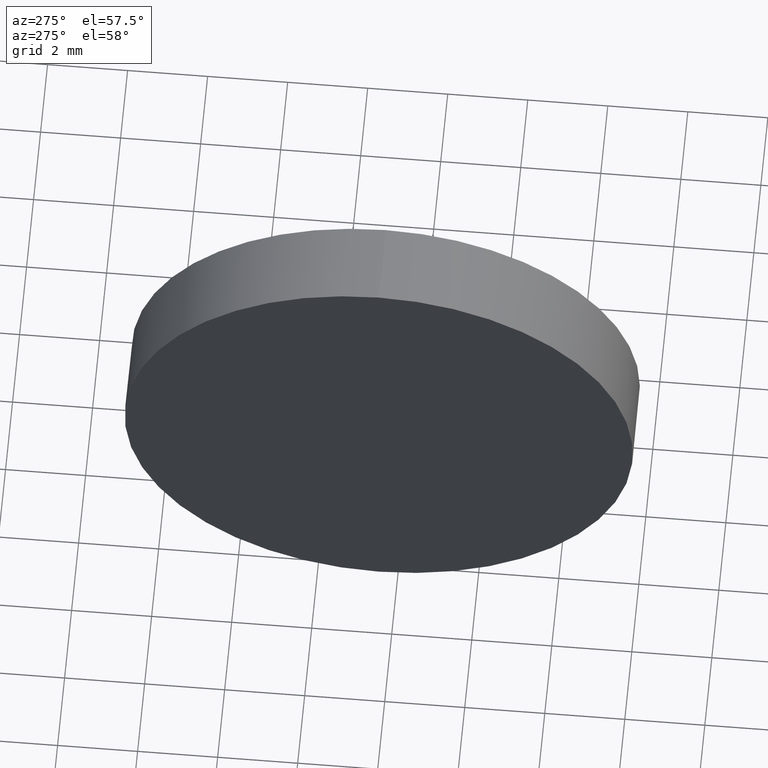
[diagram: clean part render]
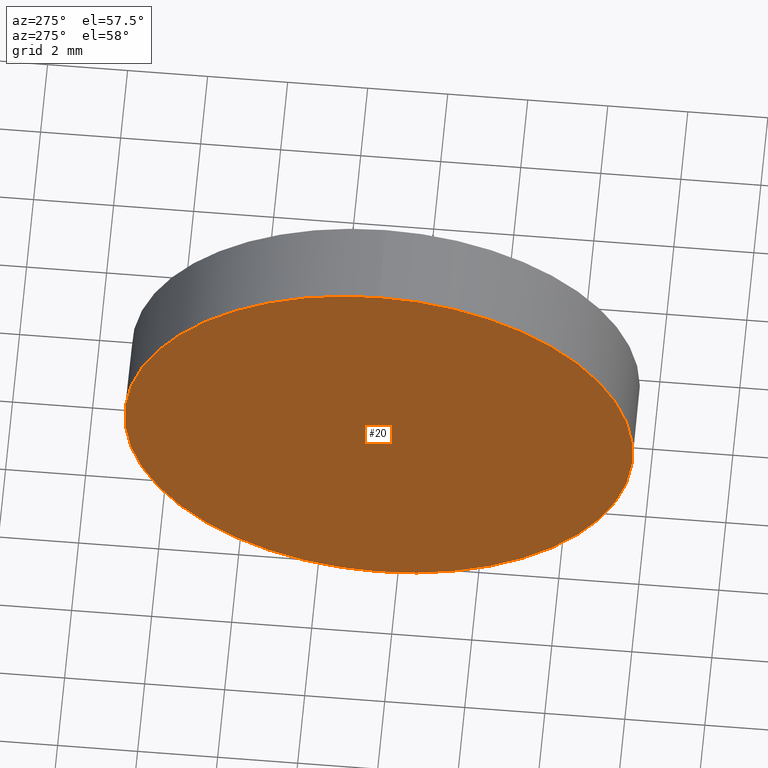
[diagram: same view with one face highlighted and labeled with its STEP entity id]
A machine part, auxiliary view. The second image highlights one B-rep face of the part: STEP entity #20.
In plain terms, the highlighted planar face has unit normal (1, 0, 0).
Its self-contained STEP definition (entity closure, byte-faithful):
#11 = VERTEX_POINT ( 'NONE', #99 ) ;
#20 = ADVANCED_FACE ( 'NONE', ( #123 ), #168, .F. ) ;
#29 = DIRECTION ( 'NONE',  ( 0.0000000000000000000, 0.0000000000000000000, 1.000000000000000000 ) ) ;
#30 = DIRECTION ( 'NONE',  ( 0.0000000000000000000, 0.0000000000000000000, 1.000000000000000000 ) ) ;
#39 = EDGE_CURVE ( 'NONE', #106, #11, #64, .T. ) ;
#43 = CARTESIAN_POINT ( 'NONE',  ( 231.6334021862494400, 130.4671098528243900, 6.349999999999994300 ) ) ;
#44 = CARTESIAN_POINT ( 'NONE',  ( 231.6334021862494400, 130.4671098528243900, 0.0000000000000000000 ) ) ;
#45 = CARTESIAN_POINT ( 'NONE',  ( 231.6334021862494400, 130.4671098528243900, 0.0000000000000000000 ) ) ;
#46 = EDGE_LOOP ( 'NONE', ( #88, #85 ) ) ;
#53 = DIRECTION ( 'NONE',  ( 0.0000000000000000000, 0.0000000000000000000, -1.000000000000000000 ) ) ;
#59 = DIRECTION ( 'NONE',  ( -1.000000000000000000, -0.0000000000000000000, -0.0000000000000000000 ) ) ;
#62 = AXIS2_PLACEMENT_3D ( 'NONE', #45, #59, #29 ) ;
#64 = CIRCLE ( 'NONE', #62, 6.349999999999994300 ) ;
#71 = AXIS2_PLACEMENT_3D ( 'NONE', #154, #138, #53 ) ;
#85 = ORIENTED_EDGE ( 'NONE', *, *, #149, .T. ) ;
#88 = ORIENTED_EDGE ( 'NONE', *, *, #39, .T. ) ;
#99 = CARTESIAN_POINT ( 'NONE',  ( 231.6334021862494400, 130.4671098528243900, -6.349999999999994300 ) ) ;
#106 = VERTEX_POINT ( 'NONE', #43 ) ;
#109 = AXIS2_PLACEMENT_3D ( 'NONE', #44, #172, #30 ) ;
#123 = FACE_OUTER_BOUND ( 'NONE', #46, .T. ) ;
#138 = DIRECTION ( 'NONE',  ( 1.000000000000000000, 0.0000000000000000000, 0.0000000000000000000 ) ) ;
#148 = CIRCLE ( 'NONE', #109, 6.349999999999994300 ) ;
#149 = EDGE_CURVE ( 'NONE', #11, #106, #148, .T. ) ;
#154 = CARTESIAN_POINT ( 'NONE',  ( 231.6334021862494400, 130.4671098528243900, 0.0000000000000000000 ) ) ;
#168 = PLANE ( 'NONE',  #71 ) ;
#172 = DIRECTION ( 'NONE',  ( -1.000000000000000000, -0.0000000000000000000, -0.0000000000000000000 ) ) ;